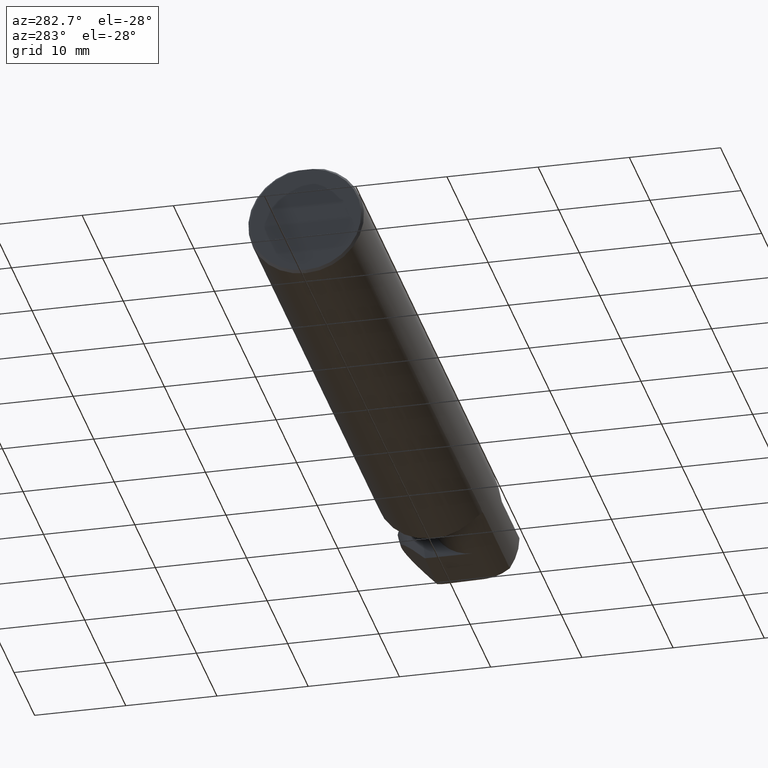
[diagram: clean part render]
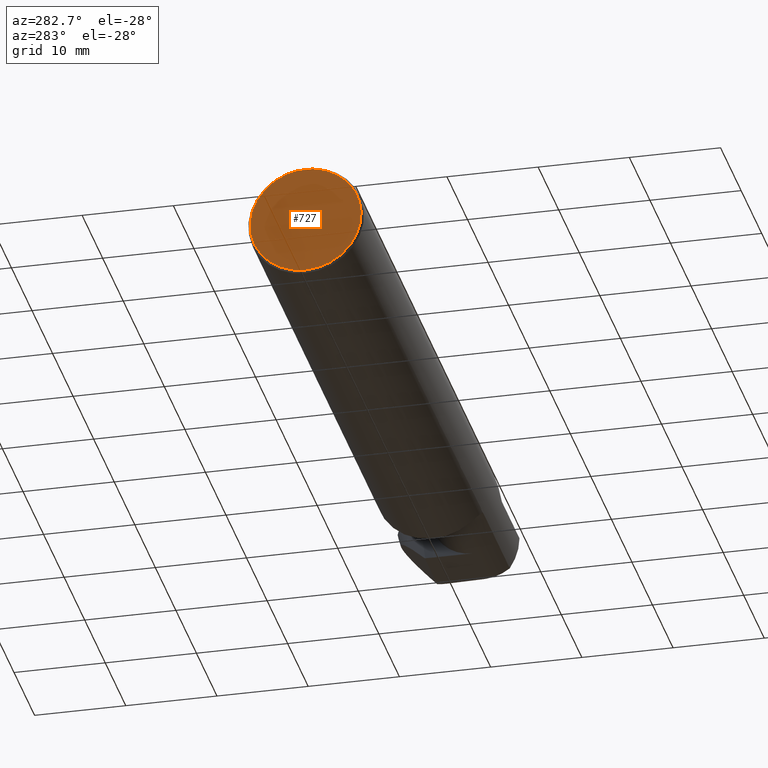
[diagram: same view with one face highlighted and labeled with its STEP entity id]
A machine part, auxiliary view. The second image highlights one B-rep face of the part: STEP entity #727.
In plain terms, the highlighted planar face has unit normal (1, 0, 0).
Its self-contained STEP definition (entity closure, byte-faithful):
#36 = EDGE_LOOP ( 'NONE', ( #59, #436, #293 ) ) ;
#45 = VERTEX_POINT ( 'NONE', #692 ) ;
#55 = AXIS2_PLACEMENT_3D ( 'NONE', #591, #776, #463 ) ;
#59 = ORIENTED_EDGE ( 'NONE', *, *, #592, .T. ) ;
#119 = AXIS2_PLACEMENT_3D ( 'NONE', #525, #355, #676 ) ;
#135 = VERTEX_POINT ( 'NONE', #596 ) ;
#144 = VERTEX_POINT ( 'NONE', #392 ) ;
#177 = DIRECTION ( 'NONE',  ( -0.000000000000000000, 1.000000000000000000, -0.000000000000000000 ) ) ;
#251 = EDGE_CURVE ( 'NONE', #144, #45, #492, .T. ) ;
#262 = EDGE_CURVE ( 'NONE', #135, #144, #353, .T. ) ;
#285 = DIRECTION ( 'NONE',  ( -1.000000000000000000, -0.000000000000000000, -0.000000000000000000 ) ) ;
#293 = ORIENTED_EDGE ( 'NONE', *, *, #251, .T. ) ;
#306 = VECTOR ( 'NONE', #177, 39.37007874015748143 ) ;
#311 = LINE ( 'NONE', #829, #306 ) ;
#353 = CIRCLE ( 'NONE', #432, 0.2398500000000001742 ) ;
#355 = DIRECTION ( 'NONE',  ( -1.000000000000000000, -0.000000000000000000, -0.000000000000000000 ) ) ;
#392 = CARTESIAN_POINT ( 'NONE',  ( 0.000000000000000000, 0.000000000000000000, -0.2398500000000001742 ) ) ;
#432 = AXIS2_PLACEMENT_3D ( 'NONE', #800, #285, #558 ) ;
#436 = ORIENTED_EDGE ( 'NONE', *, *, #262, .T. ) ;
#463 = DIRECTION ( 'NONE',  ( 0.000000000000000000, 0.000000000000000000, -1.000000000000000000 ) ) ;
#492 = CIRCLE ( 'NONE', #119, 0.2398500000000001742 ) ;
#525 = CARTESIAN_POINT ( 'NONE',  ( 0.000000000000000000, 0.000000000000000000, 0.000000000000000000 ) ) ;
#558 = DIRECTION ( 'NONE',  ( 0.000000000000000000, 0.000000000000000000, -1.000000000000000000 ) ) ;
#591 = CARTESIAN_POINT ( 'NONE',  ( 0.000000000000000000, 0.000000000000000000, 0.000000000000000000 ) ) ;
#592 = EDGE_CURVE ( 'NONE', #45, #135, #311, .T. ) ;
#596 = CARTESIAN_POINT ( 'NONE',  ( 0.000000000000000000, 0.03090954545120574992, 0.2378499999999998671 ) ) ;
#599 = PLANE ( 'NONE',  #55 ) ;
#643 = FACE_OUTER_BOUND ( 'NONE', #36, .T. ) ;
#676 = DIRECTION ( 'NONE',  ( 0.000000000000000000, 0.000000000000000000, -1.000000000000000000 ) ) ;
#692 = CARTESIAN_POINT ( 'NONE',  ( 0.000000000000000000, -0.03090954545120560767, 0.2378499999999998671 ) ) ;
#727 = ADVANCED_FACE ( 'NONE', ( #643 ), #599, .F. ) ;
#776 = DIRECTION ( 'NONE',  ( 1.000000000000000000, 0.000000000000000000, 0.000000000000000000 ) ) ;
#800 = CARTESIAN_POINT ( 'NONE',  ( 0.000000000000000000, 0.000000000000000000, 0.000000000000000000 ) ) ;
#829 = CARTESIAN_POINT ( 'NONE',  ( 0.000000000000000000, 0.2498499999999998500, 0.2378499999999998671 ) ) ;